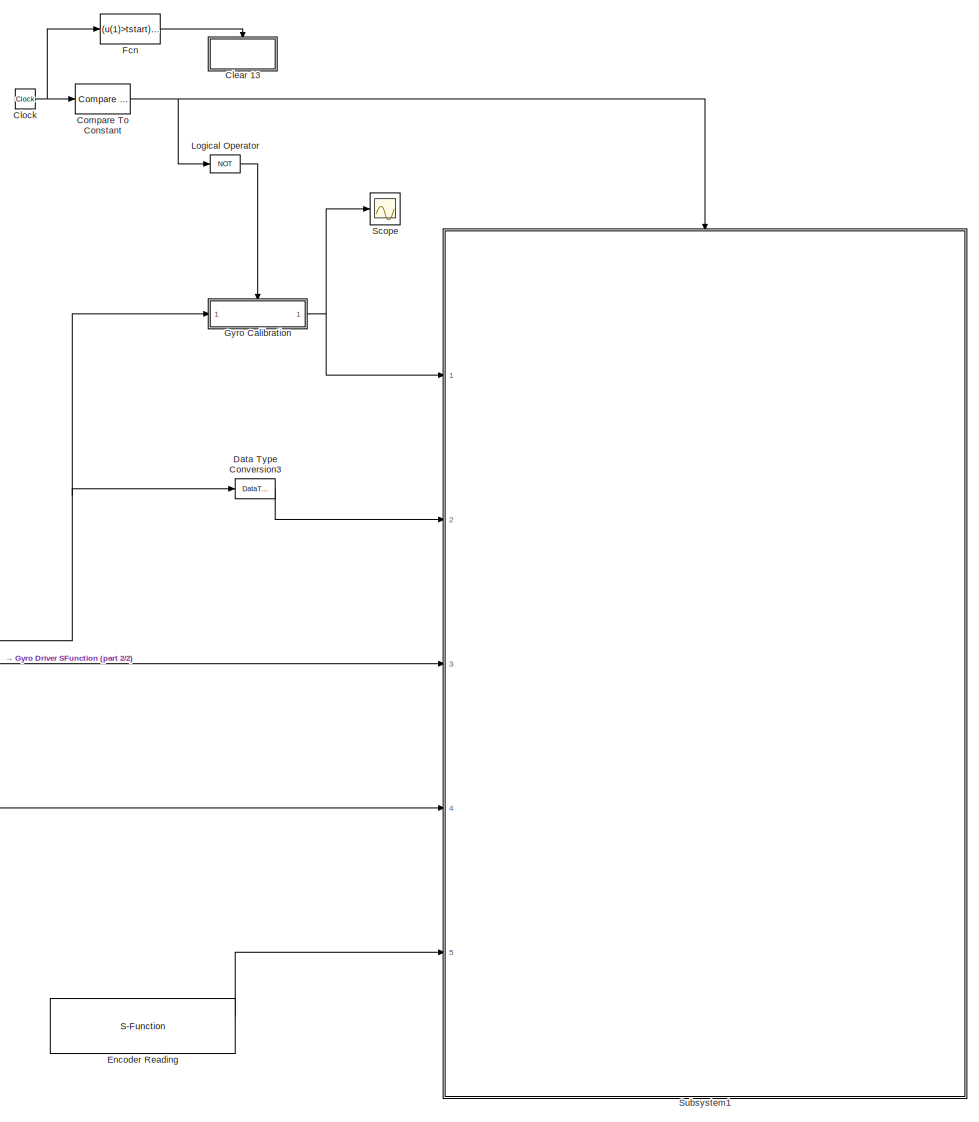
[diagram: root canvas - part 1/2, center side, full height]
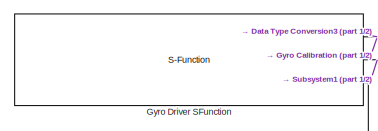
[diagram: root canvas - part 2/2, middle left region]
MODEL slx_d31964344348
KIND model
CONFIG AbsTol = auto
CONFIG EnableMultiTasking = on
CONFIG FixedStep = TS
CONFIG MaxStep = auto
CONFIG MinStep = auto
CONFIG RelTol = 1e-3
CONFIG SampleTimeConstraint = Unconstrained
CONFIG Solver = FixedStepAuto
CONFIG SolverName = FixedStepAuto
CONFIG StartTime = 0.0
CONFIG StopTime = inf
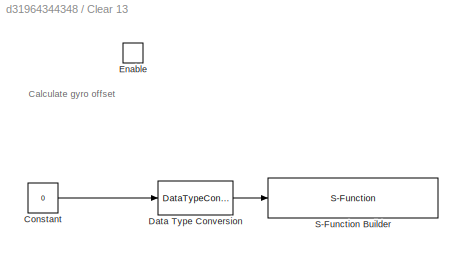
BLOCK [SubSystem] Clear 13 
  Ports = [0, 0, 1]
  RequestExecContextInheritance = off
  TreatAsAtomicUnit = on
BLOCK [Constant] Clear 13 /Constant
  Value = 0
BLOCK [DataTypeConversion] Clear 13 /Data Type Conversion
  OutDataTypeStr = boolean
  RndMeth = Floor
  SaturateOnIntegerOverflow = off
BLOCK [EnablePort] Clear 13 /Enable
  Ports = []
BLOCK [S-Function] Clear 13 /S-Function Builder
  CopyFcn = set_param(gcbh,'LinkStatus','none')
  EnableBusSupport = off
  FunctionName = sfcn_Digital_Out
  InitFcn = try, set_param(gcb,'FunctionName','sfcn_Digital_Out'), end
  OpenFcn = sfunctionwizard(gcbh)
  Parameters = uint8(13)
  Ports = [1]
  PreSaveFcn = try, set_param(gcb,'FunctionName','sfcn_Digital_Out'), end
  SFcnIsStateOwnerBlock = off
  SFunctionDeploymentMode = off
  SFunctionModules = sfcn_Digital_Out_wrapper
BLOCK [Clock] Clock
BLOCK [Reference] Compare To Constant  REF=simulink/Logic and Bit
Operations/Compare
To Constant
  Ports = [1, 1]
  SourceBlock = simulink/Logic and Bit\nOperations/Compare\nTo Constant
  SourceProductBaseCode = SL
  SourceProductName = Simulink
  SourceType = Compare To Constant
BLOCK [DataTypeConversion] Data Type Conversion3
  OutDataTypeStr = double
  RndMeth = Floor
  SaturateOnIntegerOverflow = off
BLOCK [S-Function] Encoder Reading
  CopyFcn = set_param(gcbh,'LinkStatus','none')
  EnableBusSupport = off
  FunctionName = sf_QuadEncoder_18_19_15_62
  InitFcn = try, set_param(gcb,'FunctionName','sf_QuadEncoder_18_19_15_62'), end
  OpenFcn = sfunctionwizard(gcbh)
  Parameters = uint8([0 1]),uint8([18 62]),uint8([19 15])
  Ports = [0, 2]
  PreSaveFcn = try, set_param(gcb,'FunctionName','sf_QuadEncoder_18_19_15_62'), end
  SFcnIsStateOwnerBlock = off
  SFunctionDeploymentMode = off
  SFunctionModules = sf_QuadEncoder_18_19_15_62_wrapper
BLOCK [Fcn] Fcn
  Expr = (u(1)>tstart) && (u(1) < (tstart+.1) )
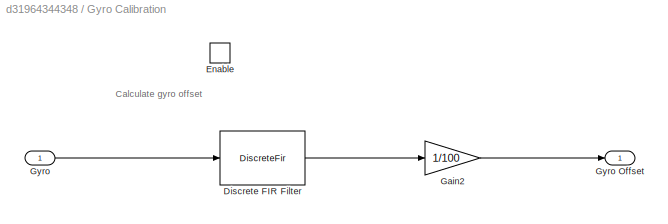
BLOCK [SubSystem] Gyro Calibration
  Ports = [1, 1, 1]
  RequestExecContextInheritance = off
  TreatAsAtomicUnit = on
BLOCK [DiscreteFir] Gyro Calibration/Discrete FIR Filter
  Coefficients = ones(1,100)
  InputPortMap = u0
  OutputPortMap = o0
  Ports = [1, 1]
BLOCK [EnablePort] Gyro Calibration/Enable
  Ports = []
BLOCK [Gain] Gyro Calibration/Gain2
  Gain = 1/100
  SaturateOnIntegerOverflow = off
BLOCK [Inport] Gyro Calibration/Gyro
  IconDisplay = Port number
BLOCK [Outport] Gyro Calibration/Gyro Offset
  IconDisplay = Port number
BLOCK [S-Function] Gyro Driver SFunction
  CopyFcn = set_param(gcbh,'LinkStatus','none')
  EnableBusSupport = off
  FunctionName = sf_MPU6050_Driver_GxAyz
  InitFcn = try, set_param(gcb,'FunctionName','sf_MPU6050_Driver_GxAyz'), end
  OpenFcn = sfunctionwizard(gcbh)
  Ports = [0, 3]
  PreSaveFcn = try, set_param(gcb,'FunctionName','sf_MPU6050_Driver_GxAyz'), end
  SFcnIsStateOwnerBlock = off
  SFunctionDeploymentMode = off
  SFunctionModules = sf_MPU6050_Driver_GxAyz_wrapper
BLOCK [Logic] Logical Operator
  AllPortsSameDT = off
  Operator = NOT
  OutDataTypeStr = boolean
  Ports = [1, 1]
BLOCK [Scope] Scope
  Floating = off
  NumInputPorts = 1
  Ports = [1]
  ScopeSpecificationString = Simulink.scopes.TimeScopeBlockCfg('CurrentConfiguration', extmgr.ConfigurationSet(extmgr.Configuration('Core','General UI',true),extmgr.Configuration('Core','Source UI',true),extmgr.Configuration('Sources','WiredSimulink',true,'DataLoggingVariableName','ScopeData1'),extmgr.Configuration('Visuals','Time Domain',true,'SerializedDisplays',{struct('MinYLimReal','-698.16357','MaxYLimReal','-498.16357',...<+1416ch>
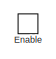
[diagram: Subsystem1 - part 1/3, top left region]
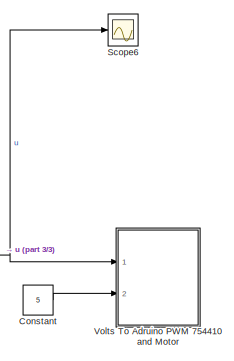
[diagram: Subsystem1 - part 2/3, top right region]
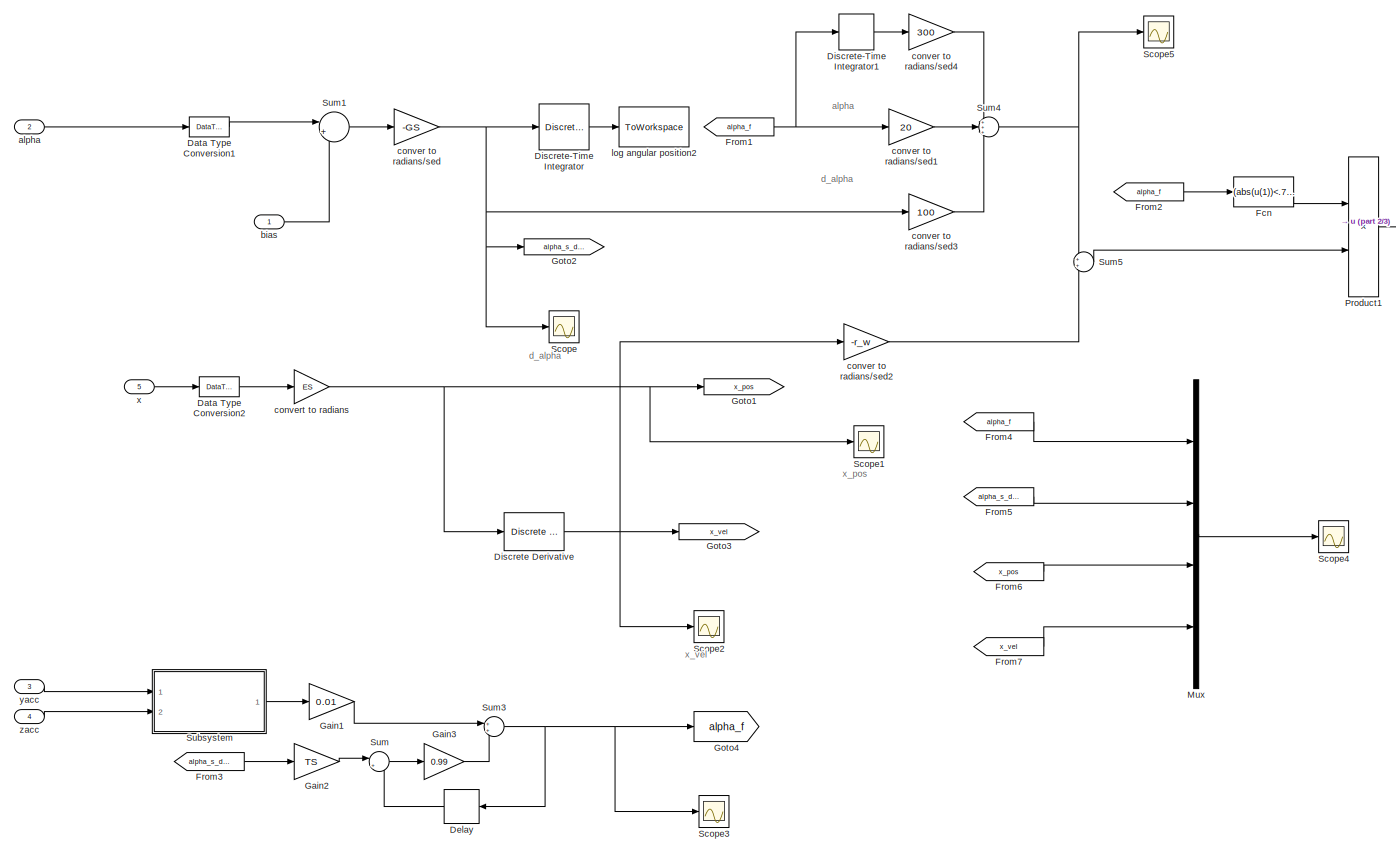
[diagram: Subsystem1 - part 3/3, most of the canvas]
BLOCK [SubSystem] Subsystem1
  Ports = [5, 0, 1]
  RequestExecContextInheritance = off
BLOCK [Constant] Subsystem1/Constant
  Value = 5
BLOCK [DataTypeConversion] Subsystem1/Data Type Conversion1
  OutDataTypeStr = double
  RndMeth = Floor
  SaturateOnIntegerOverflow = off
BLOCK [DataTypeConversion] Subsystem1/Data Type Conversion2
  OutDataTypeStr = double
  RndMeth = Floor
  SaturateOnIntegerOverflow = off
BLOCK [Delay] Subsystem1/Delay
  DelayLength = 1
  InitialCondition = 0
  InputPortMap = u0
  Ports = [1, 1]
BLOCK [Reference] Subsystem1/Discrete Derivative  REF=simulink/Discrete/Discrete Derivative
  Ports = [1, 1]
  SourceBlock = simulink/Discrete/Discrete Derivative
  SourceProductBaseCode = SL
  SourceProductName = Simulink
  SourceType = Discrete Derivative
BLOCK [DiscreteIntegrator] Subsystem1/Discrete-Time Integrator
  ICPrevOutput = DiscIntNeverNeededParam
  ICPrevScaledInput = DiscIntNeverNeededParam
  InitialConditionSetting = Auto
  Ports = [1, 1]
  SampleTime = TS
BLOCK [DiscreteIntegrator] Subsystem1/Discrete-Time Integrator1
  ICPrevOutput = DiscIntNeverNeededParam
  ICPrevScaledInput = DiscIntNeverNeededParam
  LimitOutput = on
  LowerSaturationLimit = -3/374
  Ports = [1, 1]
  SampleTime = -1
  UpperSaturationLimit = 3/374
BLOCK [EnablePort] Subsystem1/Enable
  Ports = []
BLOCK [Fcn] Subsystem1/Fcn
  Expr = (abs(u(1))<.75)
BLOCK [From] Subsystem1/From1
  GotoTag = alpha_f
BLOCK [From] Subsystem1/From2
  GotoTag = alpha_f
BLOCK [From] Subsystem1/From3
  GotoTag = alpha_s_dot
BLOCK [From] Subsystem1/From4
  GotoTag = alpha_f
BLOCK [From] Subsystem1/From5
  GotoTag = alpha_s_dot
BLOCK [From] Subsystem1/From6
  GotoTag = x_pos
BLOCK [From] Subsystem1/From7
  GotoTag = x_vel
BLOCK [Gain] Subsystem1/Gain1
  Gain = 0.01
  OutDataTypeStr = Inherit: Inherit via internal rule
  ParamDataTypeStr = Inherit: Inherit via internal rule
  SaturateOnIntegerOverflow = off
BLOCK [Gain] Subsystem1/Gain2
  Gain = TS
  OutDataTypeStr = Inherit: Inherit via internal rule
  ParamDataTypeStr = Inherit: Inherit via internal rule
  SaturateOnIntegerOverflow = off
BLOCK [Gain] Subsystem1/Gain3
  Gain = 0.99
  OutDataTypeStr = Inherit: Inherit via internal rule
  ParamDataTypeStr = Inherit: Inherit via internal rule
  SaturateOnIntegerOverflow = off
BLOCK [Goto] Subsystem1/Goto1
  GotoTag = x_pos
BLOCK [Goto] Subsystem1/Goto2
  GotoTag = alpha_s_dot
BLOCK [Goto] Subsystem1/Goto3
  GotoTag = x_vel
BLOCK [Goto] Subsystem1/Goto4
  GotoTag = alpha_f
BLOCK [Mux] Subsystem1/Mux
  DisplayOption = bar
  Ports = [4, 1]
BLOCK [Product] Subsystem1/Product1
  InputSameDT = off
  OutDataTypeStr = Inherit: Inherit via internal rule
  Ports = [2, 1]
  SaturateOnIntegerOverflow = off
BLOCK [Scope] Subsystem1/Scope
  Floating = off
  NumInputPorts = 1
  Ports = [1]
  ScopeSpecificationString = Simulink.scopes.TimeScopeBlockCfg('CurrentConfiguration', extmgr.ConfigurationSet(extmgr.Configuration('Core','General UI',true),extmgr.Configuration('Core','Source UI',true),extmgr.Configuration('Sources','WiredSimulink',true,'DataLoggingVariableName','ScopeData1'),extmgr.Configuration('Visuals','Time Domain',true,'SerializedDisplays',{struct('MinYLimReal','-3.6061','MaxYLimReal','3.87921','YLabe...<+1403ch>
BLOCK [Scope] Subsystem1/Scope1
  Floating = off
  NumInputPorts = 1
  Ports = [1]
  ScopeSpecificationString = Simulink.scopes.TimeScopeBlockCfg('CurrentConfiguration', extmgr.ConfigurationSet(extmgr.Configuration('Core','General UI',true),extmgr.Configuration('Core','Source UI',true),extmgr.Configuration('Sources','WiredSimulink',true,'DataLoggingVariableName','ScopeData2'),extmgr.Configuration('Visuals','Time Domain',true,'SerializedDisplays',{struct('MinYLimReal','-2.21984','MaxYLimReal','0.25635','YLab...<+1403ch>
BLOCK [Scope] Subsystem1/Scope2
  Floating = off
  NumInputPorts = 1
  Ports = [1]
  ScopeSpecificationString = Simulink.scopes.TimeScopeBlockCfg('CurrentConfiguration', extmgr.ConfigurationSet(extmgr.Configuration('Core','General UI',true),extmgr.Configuration('Core','Source UI',true),extmgr.Configuration('Sources','WiredSimulink',true,'DataLoggingVariableName','ScopeData3'),extmgr.Configuration('Visuals','Time Domain',true,'SerializedDisplays',{struct('MinYLimReal','-4.32696','MaxYLimReal','4.03608','YLab...<+1404ch>
BLOCK [Scope] Subsystem1/Scope3
  Floating = off
  NumInputPorts = 1
  Ports = [1]
  ScopeSpecificationString = Simulink.scopes.TimeScopeBlockCfg('CurrentConfiguration', extmgr.ConfigurationSet(extmgr.Configuration('Core','General UI',true),extmgr.Configuration('Core','Source UI',true),extmgr.Configuration('Sources','WiredSimulink',true,'DataLoggingVariableName','ScopeData4'),extmgr.Configuration('Visuals','Time Domain',true,'SerializedDisplays',{struct('MinYLimReal','-0.14652','MaxYLimReal','0.09362','YLab...<+1422ch>
BLOCK [Scope] Subsystem1/Scope4
  Floating = off
  NumInputPorts = 1
  Ports = [1]
  ScopeSpecificationString = Simulink.scopes.TimeScopeBlockCfg('CurrentConfiguration', extmgr.ConfigurationSet(extmgr.Configuration('Core','General UI',true),extmgr.Configuration('Core','Source UI',true),extmgr.Configuration('Sources','WiredSimulink',true,'DataLoggingVariableName','ScopeData1'),extmgr.Configuration('Visuals','Time Domain',true,'SerializedDisplays',{struct('MinYLimReal','-13.92771','MaxYLimReal','7.36512','YLa...<+1461ch>
BLOCK [Scope] Subsystem1/Scope5
  Floating = off
  NumInputPorts = 1
  Ports = [1]
  ScopeSpecificationString = Simulink.scopes.TimeScopeBlockCfg('CurrentConfiguration', extmgr.ConfigurationSet(extmgr.Configuration('Core','General UI',true),extmgr.Configuration('Core','Source UI',true),extmgr.Configuration('Sources','WiredSimulink',true,'DataLoggingVariableName','ScopeData1'),extmgr.Configuration('Visuals','Time Domain',true,'SerializedDisplays',{struct('MinYLimReal','-0.14652','MaxYLimReal','0.09362','YLab...<+1418ch>
BLOCK [Scope] Subsystem1/Scope6
  Floating = off
  NumInputPorts = 1
  Ports = [1]
  ScopeSpecificationString = Simulink.scopes.TimeScopeBlockCfg('CurrentConfiguration', extmgr.ConfigurationSet(extmgr.Configuration('Core','General UI',true),extmgr.Configuration('Core','Source UI',true),extmgr.Configuration('Sources','WiredSimulink',true,'DataLoggingVariableName','ScopeData2'),extmgr.Configuration('Visuals','Time Domain',true,'SerializedDisplays',{struct('MinYLimReal','-0.14652','MaxYLimReal','0.09362','YLab...<+1418ch>
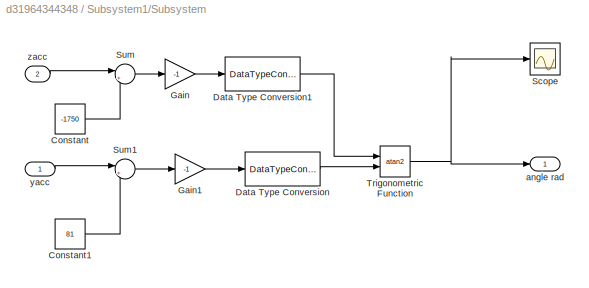
BLOCK [SubSystem] Subsystem1/Subsystem
  Ports = [2, 1]
  RequestExecContextInheritance = off
BLOCK [Constant] Subsystem1/Subsystem/Constant
  Value = -1750
BLOCK [Constant] Subsystem1/Subsystem/Constant1
  Value = 81
BLOCK [DataTypeConversion] Subsystem1/Subsystem/Data Type Conversion
  OutDataTypeStr = double
  RndMeth = Floor
  SaturateOnIntegerOverflow = off
BLOCK [DataTypeConversion] Subsystem1/Subsystem/Data Type Conversion1
  OutDataTypeStr = double
  RndMeth = Floor
  SaturateOnIntegerOverflow = off
BLOCK [Gain] Subsystem1/Subsystem/Gain
  Gain = -1
  OutDataTypeStr = Inherit: Inherit via internal rule
  ParamDataTypeStr = Inherit: Inherit via internal rule
  SaturateOnIntegerOverflow = off
BLOCK [Gain] Subsystem1/Subsystem/Gain1
  Gain = -1
  OutDataTypeStr = Inherit: Inherit via internal rule
  ParamDataTypeStr = Inherit: Inherit via internal rule
  SaturateOnIntegerOverflow = off
BLOCK [Scope] Subsystem1/Subsystem/Scope
  Floating = off
  NumInputPorts = 1
  Ports = [1]
  ScopeSpecificationString = Simulink.scopes.TimeScopeBlockCfg('CurrentConfiguration', extmgr.ConfigurationSet(extmgr.Configuration('Core','General UI',true),extmgr.Configuration('Core','Source UI',true),extmgr.Configuration('Sources','WiredSimulink',true),extmgr.Configuration('Visuals','Time Domain',true,'SerializedDisplays',{struct('MinYLimReal','-0.76364','MaxYLimReal','0.37783','YLabelReal','','MinYLimMag','0.00000','MaxY...<+1398ch>
BLOCK [Sum] Subsystem1/Subsystem/Sum
  IconShape = round
  InputSameDT = off
  Inputs = |+-
  OutDataTypeStr = Inherit: Inherit via internal rule
  Ports = [2, 1]
  SaturateOnIntegerOverflow = off
BLOCK [Sum] Subsystem1/Subsystem/Sum1
  IconShape = round
  InputSameDT = off
  Inputs = |+-
  OutDataTypeStr = Inherit: Inherit via internal rule
  Ports = [2, 1]
  SaturateOnIntegerOverflow = off
BLOCK [Trigonometry] Subsystem1/Subsystem/Trigonometric Function
  Operator = atan2
  Ports = [2, 1]
BLOCK [Outport] Subsystem1/Subsystem/angle rad
  IconDisplay = Port number
BLOCK [Inport] Subsystem1/Subsystem/yacc
  IconDisplay = Port number
BLOCK [Inport] Subsystem1/Subsystem/zacc
  IconDisplay = Port number
  Port = 2
BLOCK [Sum] Subsystem1/Sum
  IconShape = round
  InputSameDT = off
  Inputs = |++
  OutDataTypeStr = Inherit: Inherit via internal rule
  Ports = [2, 1]
  SaturateOnIntegerOverflow = off
BLOCK [Sum] Subsystem1/Sum1
  IconShape = round
  InputSameDT = off
  Inputs = |+-
  OutDataTypeStr = Inherit: Inherit via internal rule
  Ports = [2, 1]
  SaturateOnIntegerOverflow = off
BLOCK [Sum] Subsystem1/Sum3
  IconShape = round
  InputSameDT = off
  OutDataTypeStr = Inherit: Inherit via internal rule
  Ports = [2, 1]
  SaturateOnIntegerOverflow = off
BLOCK [Sum] Subsystem1/Sum4
  IconShape = round
  InputSameDT = off
  Inputs = +++
  OutDataTypeStr = Inherit: Inherit via internal rule
  Ports = [3, 1]
  SaturateOnIntegerOverflow = off
BLOCK [Sum] Subsystem1/Sum5
  IconShape = round
  InputSameDT = off
  OutDataTypeStr = Inherit: Inherit via internal rule
  Ports = [2, 1]
  SaturateOnIntegerOverflow = off
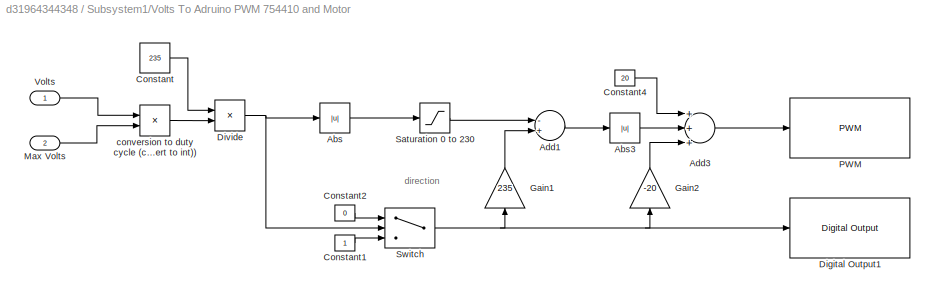
BLOCK [SubSystem] Subsystem1/Volts To Adruino PWM 754410 and Motor
  Ports = [2]
  RequestExecContextInheritance = off
BLOCK [Abs] Subsystem1/Volts To Adruino PWM 754410 and Motor/Abs
  SaturateOnIntegerOverflow = off
BLOCK [Abs] Subsystem1/Volts To Adruino PWM 754410 and Motor/Abs3
  SaturateOnIntegerOverflow = off
BLOCK [Sum] Subsystem1/Volts To Adruino PWM 754410 and Motor/Add1
  InputSameDT = off
  Inputs = -+
  OutDataTypeStr = Inherit: Inherit via internal rule
  Ports = [2, 1]
  SaturateOnIntegerOverflow = off
BLOCK [Sum] Subsystem1/Volts To Adruino PWM 754410 and Motor/Add3
  InputSameDT = off
  Inputs = +++
  OutDataTypeStr = Inherit: Inherit via internal rule
  Ports = [3, 1]
  SaturateOnIntegerOverflow = off
BLOCK [Constant] Subsystem1/Volts To Adruino PWM 754410 and Motor/Constant
  Value = 235
BLOCK [Constant] Subsystem1/Volts To Adruino PWM 754410 and Motor/Constant1
BLOCK [Constant] Subsystem1/Volts To Adruino PWM 754410 and Motor/Constant2
  Value = 0
BLOCK [Constant] Subsystem1/Volts To Adruino PWM 754410 and Motor/Constant4
  Value = 20
BLOCK [Reference] Subsystem1/Volts To Adruino PWM 754410 and Motor/Digital Output1  REF=arduinolib/Digital Output
  Ports = [1]
  SourceBlock = arduinolib/Digital Output
  SourceProductBaseCode = ARDUINO
  SourceProductName = Simulink Support Package for Arduino Hardware
  SourceType = Arduino Digital Output
BLOCK [Product] Subsystem1/Volts To Adruino PWM 754410 and Motor/Divide
  InputSameDT = off
  Inputs = **
  OutDataTypeStr = Inherit: Inherit via internal rule
  Ports = [2, 1]
  RndMeth = Floor
  SaturateOnIntegerOverflow = off
BLOCK [Gain] Subsystem1/Volts To Adruino PWM 754410 and Motor/Gain1
  Gain = 235
  OutDataTypeStr = Inherit: Inherit via internal rule
  ParamDataTypeStr = Inherit: Inherit via internal rule
  SaturateOnIntegerOverflow = off
BLOCK [Gain] Subsystem1/Volts To Adruino PWM 754410 and Motor/Gain2
  Gain = -20
  OutDataTypeStr = Inherit: Inherit via internal rule
  ParamDataTypeStr = Inherit: Inherit via internal rule
  SaturateOnIntegerOverflow = off
BLOCK [Inport] Subsystem1/Volts To Adruino PWM 754410 and Motor/Max Volts
  IconDisplay = Port number
  Port = 2
BLOCK [Reference] Subsystem1/Volts To Adruino PWM 754410 and Motor/PWM  REF=arduinolib/PWM
  Ports = [1]
  SourceBlock = arduinolib/PWM
  SourceProductBaseCode = ARDUINO
  SourceProductName = Simulink Support Package for Arduino Hardware
  SourceType = Arduino PWM
BLOCK [Saturate] Subsystem1/Volts To Adruino PWM 754410 and Motor/Saturation 0 to 230
  InputPortMap = u0
  LowerLimit = 0
  Ports = [1, 1]
  UpperLimit = 230
BLOCK [Switch] Subsystem1/Volts To Adruino PWM 754410 and Motor/Switch
  InputSameDT = off
  SaturateOnIntegerOverflow = off
BLOCK [Inport] Subsystem1/Volts To Adruino PWM 754410 and Motor/Volts
  IconDisplay = Port number
BLOCK [Product] Subsystem1/Volts To Adruino PWM 754410 and Motor/conversion to duty cycle (convert to int))
  InputSameDT = off
  Inputs = */
  OutDataTypeStr = double
  Ports = [2, 1]
  RndMeth = Floor
  SaturateOnIntegerOverflow = off
BLOCK [Inport] Subsystem1/alpha
  IconDisplay = Port number
  Port = 2
BLOCK [Inport] Subsystem1/bias
  IconDisplay = Port number
BLOCK [Gain] Subsystem1/conver to radians//sed
  Gain = -GS
  OutDataTypeStr = Inherit: Inherit via internal rule
  ParamDataTypeStr = Inherit: Inherit via internal rule
  SaturateOnIntegerOverflow = off
BLOCK [Gain] Subsystem1/conver to radians//sed1
  Gain = 20
  OutDataTypeStr = Inherit: Inherit via internal rule
  ParamDataTypeStr = Inherit: Inherit via internal rule
  SaturateOnIntegerOverflow = off
BLOCK [Gain] Subsystem1/conver to radians//sed2
  Gain = -r_w
  OutDataTypeStr = Inherit: Inherit via internal rule
  ParamDataTypeStr = Inherit: Inherit via internal rule
  SaturateOnIntegerOverflow = off
BLOCK [Gain] Subsystem1/conver to radians//sed3
  Gain = 100
  OutDataTypeStr = Inherit: Inherit via internal rule
  ParamDataTypeStr = Inherit: Inherit via internal rule
  SaturateOnIntegerOverflow = off
BLOCK [Gain] Subsystem1/conver to radians//sed4
  Gain = 300
  OutDataTypeStr = Inherit: Inherit via internal rule
  ParamDataTypeStr = Inherit: Inherit via internal rule
  SaturateOnIntegerOverflow = off
BLOCK [Gain] Subsystem1/convert to radians
  Gain = ES
  OutDataTypeStr = double
  ParamDataTypeStr = Inherit: Inherit via internal rule
  SaturateOnIntegerOverflow = off
BLOCK [ToWorkspace] Subsystem1/log angular position2
  FixptAsFi = on
  MaxDataPoints = inf
  Ports = [1]
  SampleTime = -1
  Save2DSignal = 3-D array (concatenate along third dimension)
  VariableName = alpha
BLOCK [Inport] Subsystem1/x
  IconDisplay = Port number
  Port = 5
BLOCK [Inport] Subsystem1/yacc
  IconDisplay = Port number
  Port = 3
BLOCK [Inport] Subsystem1/zacc
  IconDisplay = Port number
  Port = 4
ANNOTATION Clear 13 : Calculate gyro offset
ANNOTATION Gyro Calibration: Calculate gyro offset
ANNOTATION Subsystem1: alpha
ANNOTATION Subsystem1: d_alpha
ANNOTATION Subsystem1: x_pos
ANNOTATION Subsystem1: x_vel
ANNOTATION Subsystem1/Volts To Adruino PWM 754410 and Motor: direction
LINE Clear 13 /Constant:1 -> Clear 13 /Data Type Conversion:1
LINE Clear 13 /Data Type Conversion:1 -> Clear 13 /S-Function Builder:1
NET Clock:1 -> Compare To Constant:1, Fcn:1
NET Compare To Constant:1 -> Logical Operator:1, Subsystem1:enable
LINE Data Type Conversion3:1 -> Subsystem1:2
LINE Encoder Reading:1 -> Subsystem1:5
LINE Fcn:1 -> Clear 13 :enable
LINE Gyro Calibration/Discrete FIR Filter:1 -> Gyro Calibration/Gain2:1
LINE Gyro Calibration/Gain2:1 -> Gyro Calibration/Gyro Offset:1
LINE Gyro Calibration/Gyro:1 -> Gyro Calibration/Discrete FIR Filter:1
NET Gyro Calibration:1 -> Scope:1, Subsystem1:1
NET Gyro Driver SFunction:1 -> Data Type Conversion3:1, Gyro Calibration:1
LINE Gyro Driver SFunction:2 -> Subsystem1:3
LINE Gyro Driver SFunction:3 -> Subsystem1:4
LINE Logical Operator:1 -> Gyro Calibration:enable
LINE Subsystem1/Constant:1 -> Subsystem1/Volts To Adruino PWM 754410 and Motor:2
LINE Subsystem1/Data Type Conversion1:1 -> Subsystem1/Sum1:1
LINE Subsystem1/Data Type Conversion2:1 -> Subsystem1/convert to radians:1
LINE Subsystem1/Delay:1 -> Subsystem1/Sum:2
NET Subsystem1/Discrete Derivative:1 -> Subsystem1/Goto3:1, Subsystem1/Scope2:1, Subsystem1/conver to radians//sed2:1
LINE Subsystem1/Discrete-Time Integrator1:1 -> Subsystem1/conver to radians//sed4:1
LINE Subsystem1/Discrete-Time Integrator:1 -> Subsystem1/log angular position2:1
LINE Subsystem1/Fcn:1 -> Subsystem1/Product1:1
NET Subsystem1/From1:1 -> Subsystem1/Discrete-Time Integrator1:1, Subsystem1/conver to radians//sed1:1
LINE Subsystem1/From2:1 -> Subsystem1/Fcn:1
LINE Subsystem1/From3:1 -> Subsystem1/Gain2:1
LINE Subsystem1/From4:1 -> Subsystem1/Mux:1
LINE Subsystem1/From5:1 -> Subsystem1/Mux:2
LINE Subsystem1/From6:1 -> Subsystem1/Mux:3
LINE Subsystem1/From7:1 -> Subsystem1/Mux:4
LINE Subsystem1/Gain1:1 -> Subsystem1/Sum3:1
LINE Subsystem1/Gain2:1 -> Subsystem1/Sum:1
LINE Subsystem1/Gain3:1 -> Subsystem1/Sum3:2
LINE Subsystem1/Mux:1 -> Subsystem1/Scope4:1
NET Subsystem1/Product1:1 -> Subsystem1/Scope6:1, Subsystem1/Volts To Adruino PWM 754410 and Motor:1
LINE Subsystem1/Subsystem/Constant1:1 -> Subsystem1/Subsystem/Sum1:2
LINE Subsystem1/Subsystem/Constant:1 -> Subsystem1/Subsystem/Sum:2
LINE Subsystem1/Subsystem/Data Type Conversion1:1 -> Subsystem1/Subsystem/Trigonometric Function:1
LINE Subsystem1/Subsystem/Data Type Conversion:1 -> Subsystem1/Subsystem/Trigonometric Function:2
LINE Subsystem1/Subsystem/Gain1:1 -> Subsystem1/Subsystem/Data Type Conversion:1
LINE Subsystem1/Subsystem/Gain:1 -> Subsystem1/Subsystem/Data Type Conversion1:1
LINE Subsystem1/Subsystem/Sum1:1 -> Subsystem1/Subsystem/Gain1:1
LINE Subsystem1/Subsystem/Sum:1 -> Subsystem1/Subsystem/Gain:1
NET Subsystem1/Subsystem/Trigonometric Function:1 -> Subsystem1/Subsystem/Scope:1, Subsystem1/Subsystem/angle rad:1
LINE Subsystem1/Subsystem/yacc:1 -> Subsystem1/Subsystem/Sum1:1
LINE Subsystem1/Subsystem/zacc:1 -> Subsystem1/Subsystem/Sum:1
LINE Subsystem1/Subsystem:1 -> Subsystem1/Gain1:1
LINE Subsystem1/Sum1:1 -> Subsystem1/conver to radians//sed:1
NET Subsystem1/Sum3:1 -> Subsystem1/Delay:1, Subsystem1/Goto4:1, Subsystem1/Scope3:1
NET Subsystem1/Sum4:1 -> Subsystem1/Scope5:1, Subsystem1/Sum5:1
LINE Subsystem1/Sum5:1 -> Subsystem1/Product1:2
LINE Subsystem1/Sum:1 -> Subsystem1/Gain3:1
LINE Subsystem1/Volts To Adruino PWM 754410 and Motor/Abs3:1 -> Subsystem1/Volts To Adruino PWM 754410 and Motor/Add3:2
LINE Subsystem1/Volts To Adruino PWM 754410 and Motor/Abs:1 -> Subsystem1/Volts To Adruino PWM 754410 and Motor/Saturation 0 to 230:1
LINE Subsystem1/Volts To Adruino PWM 754410 and Motor/Add1:1 -> Subsystem1/Volts To Adruino PWM 754410 and Motor/Abs3:1
LINE Subsystem1/Volts To Adruino PWM 754410 and Motor/Add3:1 -> Subsystem1/Volts To Adruino PWM 754410 and Motor/PWM:1
LINE Subsystem1/Volts To Adruino PWM 754410 and Motor/Constant1:1 -> Subsystem1/Volts To Adruino PWM 754410 and Motor/Switch:3
LINE Subsystem1/Volts To Adruino PWM 754410 and Motor/Constant2:1 -> Subsystem1/Volts To Adruino PWM 754410 and Motor/Switch:1
LINE Subsystem1/Volts To Adruino PWM 754410 and Motor/Constant4:1 -> Subsystem1/Volts To Adruino PWM 754410 and Motor/Add3:1
LINE Subsystem1/Volts To Adruino PWM 754410 and Motor/Constant:1 -> Subsystem1/Volts To Adruino PWM 754410 and Motor/Divide:1
NET Subsystem1/Volts To Adruino PWM 754410 and Motor/Divide:1 -> Subsystem1/Volts To Adruino PWM 754410 and Motor/Abs:1, Subsystem1/Volts To Adruino PWM 754410 and Motor/Switch:2
LINE Subsystem1/Volts To Adruino PWM 754410 and Motor/Gain1:1 -> Subsystem1/Volts To Adruino PWM 754410 and Motor/Add1:2
LINE Subsystem1/Volts To Adruino PWM 754410 and Motor/Gain2:1 -> Subsystem1/Volts To Adruino PWM 754410 and Motor/Add3:3
LINE Subsystem1/Volts To Adruino PWM 754410 and Motor/Max Volts:1 -> Subsystem1/Volts To Adruino PWM 754410 and Motor/conversion to duty cycle (convert to int)):2
LINE Subsystem1/Volts To Adruino PWM 754410 and Motor/Saturation 0 to 230:1 -> Subsystem1/Volts To Adruino PWM 754410 and Motor/Add1:1
NET Subsystem1/Volts To Adruino PWM 754410 and Motor/Switch:1 -> Subsystem1/Volts To Adruino PWM 754410 and Motor/Digital Output1:1, Subsystem1/Volts To Adruino PWM 754410 and Motor/Gain1:1, Subsystem1/Volts To Adruino PWM 754410 and Motor/Gain2:1
LINE Subsystem1/Volts To Adruino PWM 754410 and Motor/Volts:1 -> Subsystem1/Volts To Adruino PWM 754410 and Motor/conversion to duty cycle (convert to int)):1
LINE Subsystem1/Volts To Adruino PWM 754410 and Motor/conversion to duty cycle (convert to int)):1 -> Subsystem1/Volts To Adruino PWM 754410 and Motor/Divide:2
LINE Subsystem1/alpha:1 -> Subsystem1/Data Type Conversion1:1
LINE Subsystem1/bias:1 -> Subsystem1/Sum1:2
LINE Subsystem1/conver to radians//sed1:1 -> Subsystem1/Sum4:2
LINE Subsystem1/conver to radians//sed2:1 -> Subsystem1/Sum5:2
LINE Subsystem1/conver to radians//sed3:1 -> Subsystem1/Sum4:3
LINE Subsystem1/conver to radians//sed4:1 -> Subsystem1/Sum4:1
NET Subsystem1/conver to radians//sed:1 -> Subsystem1/Discrete-Time Integrator:1, Subsystem1/Goto2:1, Subsystem1/Scope:1, Subsystem1/conver to radians//sed3:1
NET Subsystem1/convert to radians:1 -> Subsystem1/Discrete Derivative:1, Subsystem1/Goto1:1, Subsystem1/Scope1:1
LINE Subsystem1/x:1 -> Subsystem1/Data Type Conversion2:1
LINE Subsystem1/yacc:1 -> Subsystem1/Subsystem:1
LINE Subsystem1/zacc:1 -> Subsystem1/Subsystem:2
note: NET lines group one-source signal fan-out (src -> all destinations, sorted); 1:1 wires keep LINE
